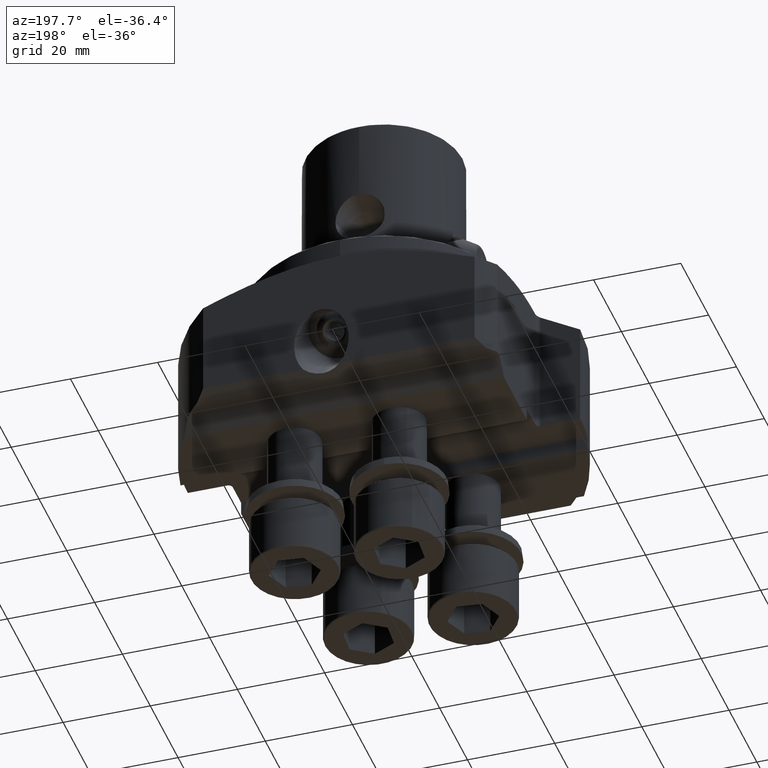
[diagram: clean part render]
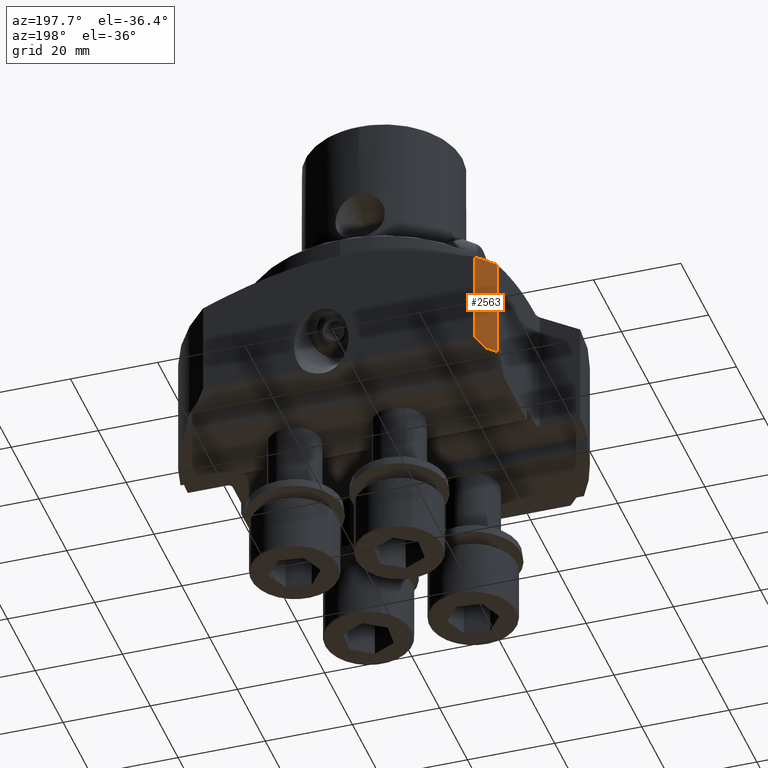
[diagram: same view with one face highlighted and labeled with its STEP entity id]
A machine part, auxiliary view. The second image highlights one B-rep face of the part: STEP entity #2563.
In plain terms, the highlighted cylindrical surface (partial cylindrical patch) has radius 45 mm, axis along (-0, -0, 1).
Its self-contained STEP definition (entity closure, byte-faithful):
#2563=ADVANCED_FACE('NONE',(#6740),#6741,.T.);
#2631=VERTEX_POINT('NONE',#6820);
#3077=VERTEX_POINT('NONE',#7319);
#3955=VERTEX_POINT('NONE',#8296);
#4253=VERTEX_POINT('NONE',#8636);
#4601=EDGE_CURVE('NONE',#2631,#3077,#9028,.T.);
#4655=VERTEX_POINT('NONE',#9089);
#5559=EDGE_CURVE('NONE',#4655,#3955,#10105,.T.);
#5617=EDGE_CURVE('NONE',#2631,#4655,#10167,.T.);
#5699=EDGE_CURVE('NONE',#3955,#4253,#10263,.T.);
#5937=EDGE_CURVE('NONE',#4253,#3077,#10528,.T.);
#6740=FACE_OUTER_BOUND('',#11583,.T.);
#6741=CYLINDRICAL_SURFACE('',#11584,45.0);
#6820=CARTESIAN_POINT('',(-31.1247489949718,32.5,-12.79422863406));
#7319=CARTESIAN_POINT('',(-34.9999999999998,28.2842712474622,-12.79422863406));
#8296=CARTESIAN_POINT('',(-33.0870065131314,30.5,-36.5));
#8636=CARTESIAN_POINT('',(-34.9999999999998,28.2842712474622,-36.5));
#9028=CIRCLE('',#15020,45.0);
#9089=CARTESIAN_POINT('',(-31.1247489949718,32.5,-34.5));
#10105=(B_SPLINE_CURVE(3,(#16690,#16691,#16692,#16693),.UNSPECIFIED.,.F.,.F.)B_SPLINE_CURVE_WITH_KNOTS((4,4),(0.763786496397832,0.826060253145446),.UNSPECIFIED.)RATIONAL_B_SPLINE_CURVE((1.0,0.999676857710321,0.999676857710321,1.0))BOUNDED_CURVE()REPRESENTATION_ITEM('')GEOMETRIC_REPRESENTATION_ITEM()CURVE());
#10167=LINE('',#16824,#16825);
#10263=CIRCLE('',#16965,45.0);
#10528=LINE('',#17409,#17410);
#11583=EDGE_LOOP('',(#18486,#18487,#18488,#18489,#18490));
#11584=AXIS2_PLACEMENT_3D('',#18491,#18492,#18493);
#15020=AXIS2_PLACEMENT_3D('',#21370,#21371,#21372);
#16690=CARTESIAN_POINT('',(-31.1247489949718,32.5,-34.5));
#16691=CARTESIAN_POINT('',(-31.7994903925716,31.8538105650212,-35.1461894349787));
#16692=CARTESIAN_POINT('',(-32.4537876630763,31.186928400525,-35.813071599475));
#16693=CARTESIAN_POINT('',(-33.0870065131314,30.5,-36.5));
#16824=CARTESIAN_POINT('',(-31.1247489949718,32.5,12.8033046321876));
#16825=VECTOR('',#22806,1000.0);
#16965=AXIS2_PLACEMENT_3D('',#22917,#22918,#22919);
#17409=CARTESIAN_POINT('',(-34.9999999999998,28.2842712474621,12.8033046321876));
#17410=VECTOR('',#23253,1000.0);
#18486=ORIENTED_EDGE('',*,*,#5617,.T.);
#18487=ORIENTED_EDGE('',*,*,#5559,.T.);
#18488=ORIENTED_EDGE('',*,*,#5699,.T.);
#18489=ORIENTED_EDGE('',*,*,#5937,.T.);
#18490=ORIENTED_EDGE('',*,*,#4601,.F.);
#18491=CARTESIAN_POINT('',(0.0,0.0,12.8033046321876));
#18492=DIRECTION('',(-0.0,-0.0,1.0));
#18493=DIRECTION('',(0.0,1.0,0.0));
#21370=CARTESIAN_POINT('',(0.0,0.0,-12.79422863406));
#21371=DIRECTION('',(0.0,-0.0,1.0));
#21372=DIRECTION('',(0.0,1.0,0.0));
#22806=DIRECTION('',(0.0,0.0,-1.0));
#22917=CARTESIAN_POINT('',(0.0,0.0,-36.5));
#22918=DIRECTION('',(0.0,-0.0,1.0));
#22919=DIRECTION('',(0.0,1.0,0.0));
#23253=DIRECTION('',(0.0,0.0,1.0));